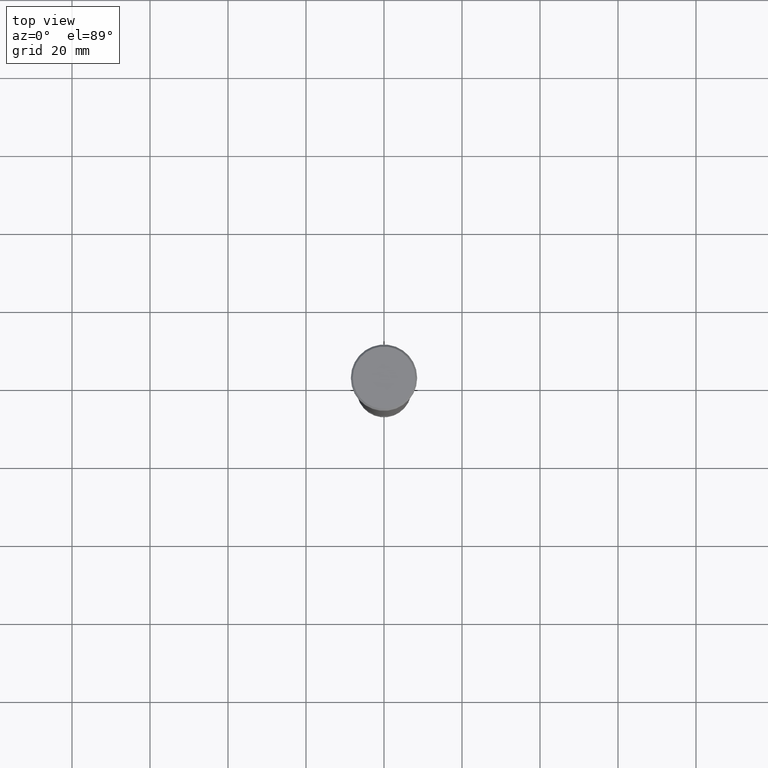
[diagram: clean part render]
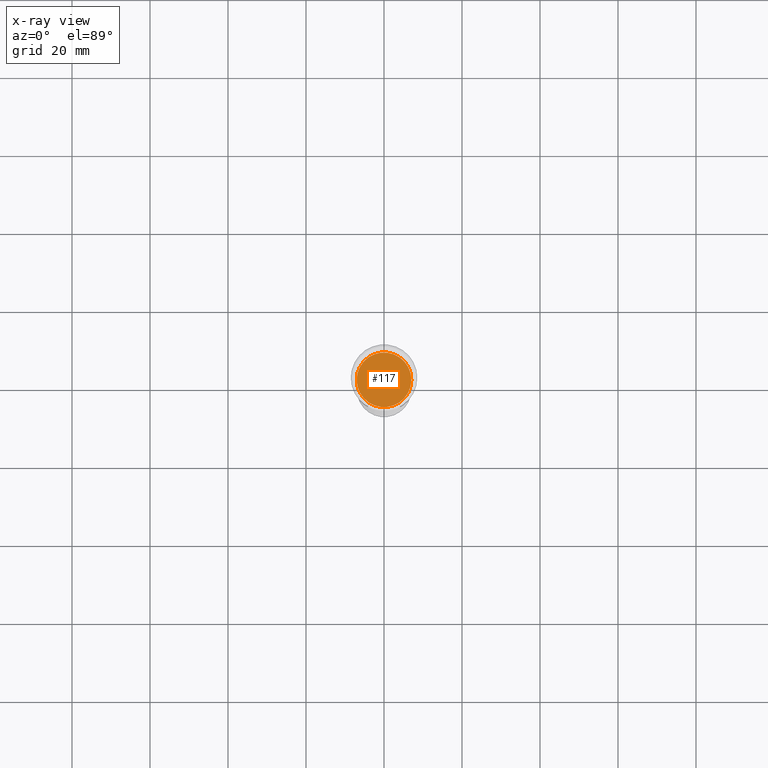
[diagram: x-ray — body ghosted, one internal face saturated and labeled with its STEP entity id]
A machine part, top view, then the same camera in x-ray: the body is ghosted and one INTERNAL B-rep face — a face not visible from any outside direction — is saturated and labeled: STEP entity #117.
In plain terms, the highlighted planar face has unit normal (0, 0, -1).
Its self-contained STEP definition (entity closure, byte-faithful):
#117 = ADVANCED_FACE ( 'NONE', ( #828 ), #743, .T. ) ;
#207 = AXIS2_PLACEMENT_3D ( 'NONE', #794, #1004, #285 ) ;
#218 = CIRCLE ( 'NONE', #649, 7.000000000000000000 ) ;
#284 = CARTESIAN_POINT ( 'NONE',  ( 0.000000000000000000, 0.000000000000000000, -33.00000000000000000 ) ) ;
#285 = DIRECTION ( 'NONE',  ( -1.000000000000000000, 0.000000000000000000, -0.000000000000000000 ) ) ;
#312 = CARTESIAN_POINT ( 'NONE',  ( -7.000000000000000000, 8.572527594031473190E-16, -33.00000000000000000 ) ) ;
#414 = EDGE_CURVE ( 'NONE', #772, #608, #935, .T. ) ;
#448 = ORIENTED_EDGE ( 'NONE', *, *, #414, .T. ) ;
#582 = AXIS2_PLACEMENT_3D ( 'NONE', #1084, #647, #984 ) ;
#608 = VERTEX_POINT ( 'NONE', #312 ) ;
#647 = DIRECTION ( 'NONE',  ( 0.000000000000000000, 0.000000000000000000, -1.000000000000000000 ) ) ;
#649 = AXIS2_PLACEMENT_3D ( 'NONE', #284, #740, #1111 ) ;
#709 = EDGE_LOOP ( 'NONE', ( #448, #1136 ) ) ;
#740 = DIRECTION ( 'NONE',  ( 0.000000000000000000, 0.000000000000000000, -1.000000000000000000 ) ) ;
#743 = PLANE ( 'NONE',  #207 ) ;
#772 = VERTEX_POINT ( 'NONE', #964 ) ;
#794 = CARTESIAN_POINT ( 'NONE',  ( 0.000000000000000000, 0.000000000000000000, -33.00000000000000000 ) ) ;
#828 = FACE_OUTER_BOUND ( 'NONE', #709, .T. ) ;
#911 = EDGE_CURVE ( 'NONE', #608, #772, #218, .T. ) ;
#935 = CIRCLE ( 'NONE', #582, 7.000000000000000000 ) ;
#964 = CARTESIAN_POINT ( 'NONE',  ( 7.000000000000000000, 0.000000000000000000, -33.00000000000000000 ) ) ;
#984 = DIRECTION ( 'NONE',  ( -1.000000000000000000, 0.000000000000000000, 0.000000000000000000 ) ) ;
#1004 = DIRECTION ( 'NONE',  ( 0.000000000000000000, 0.000000000000000000, -1.000000000000000000 ) ) ;
#1084 = CARTESIAN_POINT ( 'NONE',  ( 0.000000000000000000, 0.000000000000000000, -33.00000000000000000 ) ) ;
#1111 = DIRECTION ( 'NONE',  ( -1.000000000000000000, 0.000000000000000000, 0.000000000000000000 ) ) ;
#1136 = ORIENTED_EDGE ( 'NONE', *, *, #911, .T. ) ;